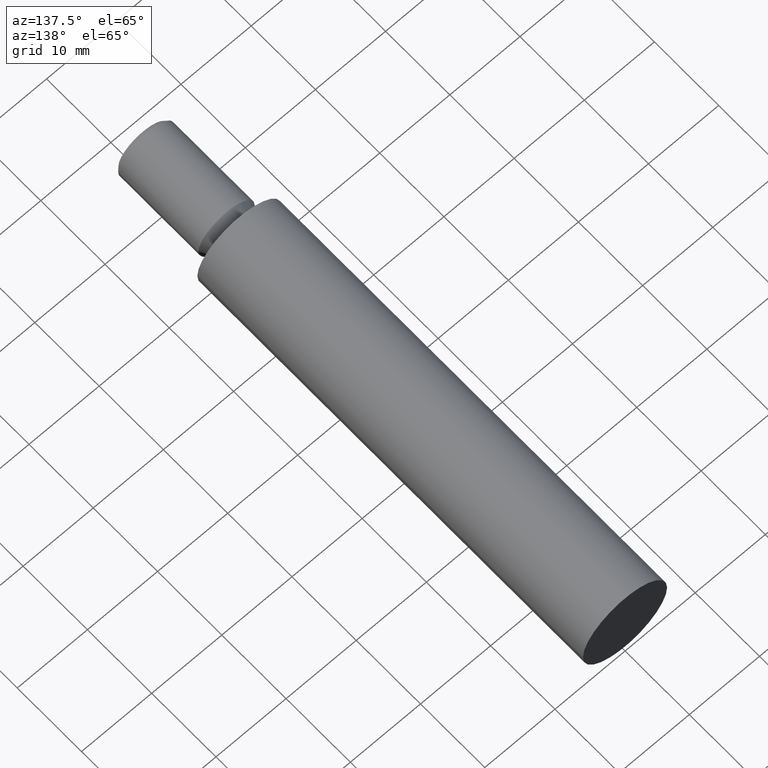
[diagram: clean part render]
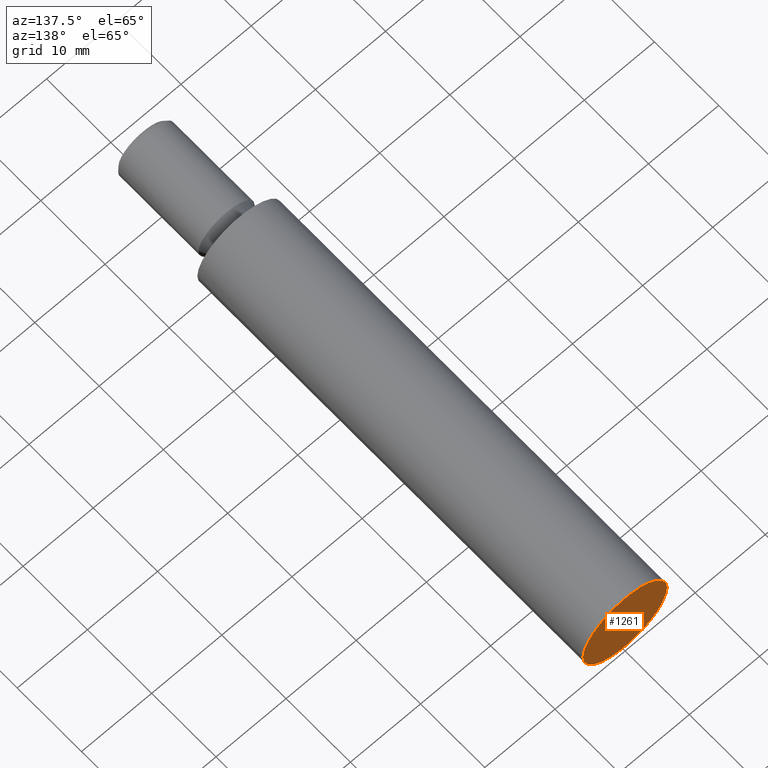
[diagram: same view with one face highlighted and labeled with its STEP entity id]
A machine part, auxiliary view. The second image highlights one B-rep face of the part: STEP entity #1261.
In plain terms, the highlighted planar face has unit normal (-0, 1, 0).
Its self-contained STEP definition (entity closure, byte-faithful):
#41 = PLANE ( 'NONE',  #12750 ) ;
#318 = EDGE_LOOP ( 'NONE', ( #2507 ) ) ;
#918 = DIRECTION ( 'NONE',  ( 1.000000000000000000, 0.000000000000000000, 0.000000000000000000 ) ) ;
#1261 = ADVANCED_FACE ( 'NONE', ( #8687 ), #41, .T. ) ;
#2507 = ORIENTED_EDGE ( 'NONE', *, *, #10367, .F. ) ;
#3998 = DIRECTION ( 'NONE',  ( 2.567906592516314585E-33, -1.000000000000000000, -0.000000000000000000 ) ) ;
#4080 = DIRECTION ( 'NONE',  ( -1.000000000000000000, -2.567906592516314585E-33, 0.000000000000000000 ) ) ;
#4861 = AXIS2_PLACEMENT_3D ( 'NONE', #13639, #3998, #918 ) ;
#6945 = CIRCLE ( 'NONE', #4861, 5.999999999999999112 ) ;
#8687 = FACE_OUTER_BOUND ( 'NONE', #318, .T. ) ;
#8768 = VERTEX_POINT ( 'NONE', #11206 ) ;
#10367 = EDGE_CURVE ( 'NONE', #8768, #8768, #6945, .T. ) ;
#10484 = DIRECTION ( 'NONE',  ( -2.567906592516314585E-33, 1.000000000000000000, 0.000000000000000000 ) ) ;
#11206 = CARTESIAN_POINT ( 'NONE',  ( 5.999999999999999112, 60.00000000000000000, 0.000000000000000000 ) ) ;
#12750 = AXIS2_PLACEMENT_3D ( 'NONE', #13630, #10484, #4080 ) ;
#13630 = CARTESIAN_POINT ( 'NONE',  ( 1.978243280366624880E-65, 60.00000000000000000, 0.000000000000000000 ) ) ;
#13639 = CARTESIAN_POINT ( 'NONE',  ( 0.000000000000000000, 60.00000000000000000, 0.000000000000000000 ) ) ;